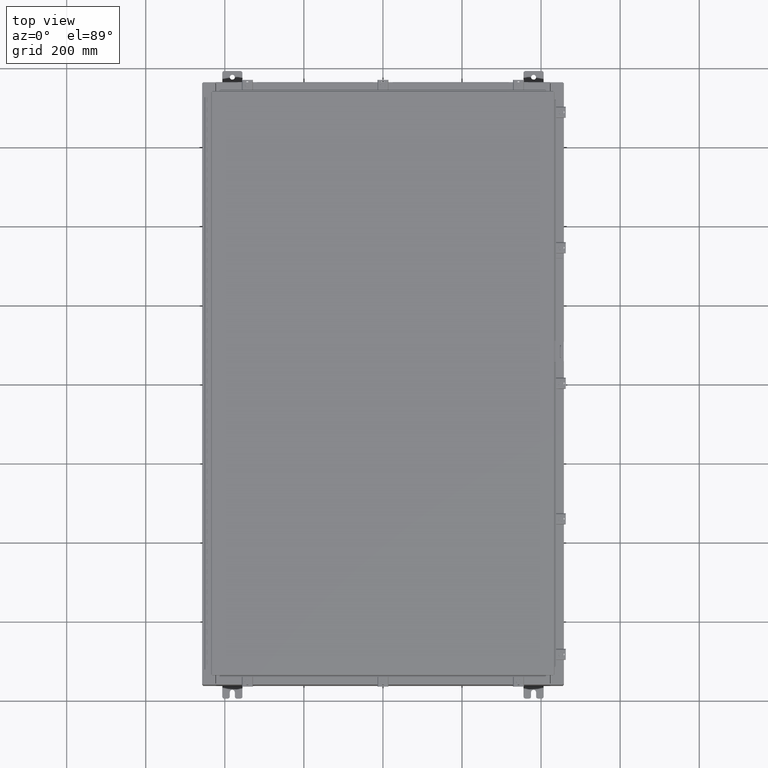
[diagram: clean part render]
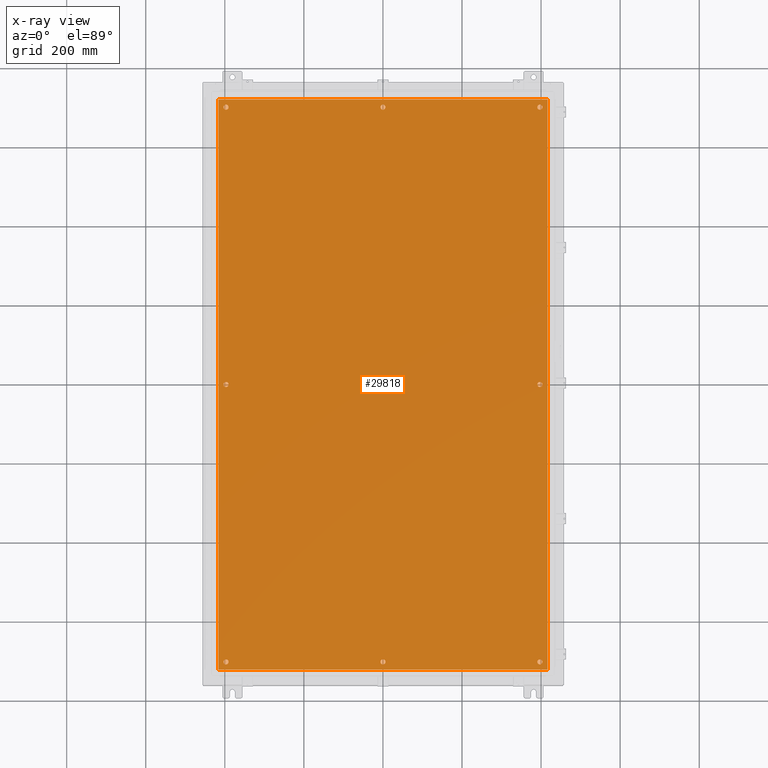
[diagram: x-ray — body ghosted, one internal face saturated and labeled with its STEP entity id]
A machine part, top view, then the same camera in x-ray: the body is ghosted and one INTERNAL B-rep face — a face not visible from any outside direction — is saturated and labeled: STEP entity #29818.
In plain terms, the highlighted planar face has unit normal (0, 0, -1).
Its self-contained STEP definition (entity closure, byte-faithful):
#6 = CIRCLE ( 'NONE', #49368, 0.2499999999999998600 ) ;
#98 = CARTESIAN_POINT ( 'NONE',  ( -0.2500000000000011700, -27.62500000000000000, -0.1039999999999999800 ) ) ;
#328 = VECTOR ( 'NONE', #15884, 39.37007874015748100 ) ;
#608 = DIRECTION ( 'NONE',  ( -1.000000000000000000, 0.0000000000000000000, 0.0000000000000000000 ) ) ;
#704 = EDGE_LOOP ( 'NONE', ( #50180, #9487 ) ) ;
#1457 = CARTESIAN_POINT ( 'NONE',  ( -15.37500000000000900, -27.62500000000000000, -0.1039999999999999800 ) ) ;
#1530 = CARTESIAN_POINT ( 'NONE',  ( 15.62500000000000900, -27.62500000000000000, -0.1039999999999999800 ) ) ;
#1863 = CARTESIAN_POINT ( 'NONE',  ( 15.87500000000000700, 27.62500000000000000, -0.1039999999999999800 ) ) ;
#2033 = VERTEX_POINT ( 'NONE', #59716 ) ;
#2069 = ORIENTED_EDGE ( 'NONE', *, *, #9158, .T. ) ;
#2111 = AXIS2_PLACEMENT_3D ( 'NONE', #28582, #62609, #33419 ) ;
#3066 = CARTESIAN_POINT ( 'NONE',  ( -15.37500000000000900, 27.62500000000000000, -0.1039999999999999800 ) ) ;
#3191 = CARTESIAN_POINT ( 'NONE',  ( 15.87500000000000700, -27.62500000000000000, -0.1039999999999999800 ) ) ;
#3568 = DIRECTION ( 'NONE',  ( -0.0000000000000000000, -0.0000000000000000000, 1.000000000000000000 ) ) ;
#4060 = FACE_BOUND ( 'NONE', #55606, .T. ) ;
#4376 = DIRECTION ( 'NONE',  ( -1.000000000000000000, 0.0000000000000000000, 0.0000000000000000000 ) ) ;
#4400 = ORIENTED_EDGE ( 'NONE', *, *, #47531, .T. ) ;
#4609 = EDGE_CURVE ( 'NONE', #18597, #22534, #7999, .T. ) ;
#4791 = DIRECTION ( 'NONE',  ( -0.0000000000000000000, -0.0000000000000000000, 1.000000000000000000 ) ) ;
#5002 = CARTESIAN_POINT ( 'NONE',  ( 0.0000000000000000000, -27.62500000000000000, -0.1039999999999999800 ) ) ;
#5037 = ORIENTED_EDGE ( 'NONE', *, *, #17517, .F. ) ;
#5175 = AXIS2_PLACEMENT_3D ( 'NONE', #5002, #4791, #4376 ) ;
#5279 = ORIENTED_EDGE ( 'NONE', *, *, #4609, .T. ) ;
#5345 = CARTESIAN_POINT ( 'NONE',  ( 15.37500000000000900, -27.62500000000000000, -0.1039999999999999800 ) ) ;
#5346 = VERTEX_POINT ( 'NONE', #42388 ) ;
#5456 = EDGE_CURVE ( 'NONE', #32627, #5346, #62666, .T. ) ;
#5529 = EDGE_CURVE ( 'NONE', #5346, #32627, #33683, .T. ) ;
#5993 = EDGE_LOOP ( 'NONE', ( #58458, #44023 ) ) ;
#6070 = DIRECTION ( 'NONE',  ( -0.0000000000000000000, -0.0000000000000000000, 1.000000000000000000 ) ) ;
#6173 = VERTEX_POINT ( 'NONE', #44787 ) ;
#6423 = DIRECTION ( 'NONE',  ( -1.000000000000000000, 0.0000000000000000000, 0.0000000000000000000 ) ) ;
#6707 = AXIS2_PLACEMENT_3D ( 'NONE', #35183, #6070, #40086 ) ;
#6718 = CARTESIAN_POINT ( 'NONE',  ( -15.37500000000000500, -8.298848852119578500E-016, -0.1039999999999999800 ) ) ;
#7108 = FACE_BOUND ( 'NONE', #704, .T. ) ;
#7174 = DIRECTION ( 'NONE',  ( -0.0000000000000000000, -0.0000000000000000000, 1.000000000000000000 ) ) ;
#7584 = CIRCLE ( 'NONE', #48626, 0.2499999999999987000 ) ;
#7591 = PLANE ( 'NONE',  #58777 ) ;
#7767 = EDGE_CURVE ( 'NONE', #2033, #60616, #16087, .T. ) ;
#7999 = CIRCLE ( 'NONE', #5175, 0.2500000000000011700 ) ;
#8623 = EDGE_CURVE ( 'NONE', #54750, #53070, #60853, .T. ) ;
#8677 = EDGE_CURVE ( 'NONE', #53070, #54750, #7584, .T. ) ;
#8960 = AXIS2_PLACEMENT_3D ( 'NONE', #34249, #34180, #34102 ) ;
#8995 = VERTEX_POINT ( 'NONE', #13812 ) ;
#9158 = EDGE_CURVE ( 'NONE', #22534, #18597, #60799, .T. ) ;
#9387 = ORIENTED_EDGE ( 'NONE', *, *, #8677, .T. ) ;
#9487 = ORIENTED_EDGE ( 'NONE', *, *, #28085, .T. ) ;
#9924 = VERTEX_POINT ( 'NONE', #35797 ) ;
#10727 = AXIS2_PLACEMENT_3D ( 'NONE', #48686, #19561, #53585 ) ;
#11553 = DIRECTION ( 'NONE',  ( -0.0000000000000000000, -0.0000000000000000000, 1.000000000000000000 ) ) ;
#11955 = VERTEX_POINT ( 'NONE', #23678 ) ;
#12134 = CARTESIAN_POINT ( 'NONE',  ( 0.0000000000000000000, 27.62500000000000000, -0.1039999999999999800 ) ) ;
#12884 = VECTOR ( 'NONE', #44810, 39.37007874015748100 ) ;
#12972 = ORIENTED_EDGE ( 'NONE', *, *, #5529, .T. ) ;
#13812 = CARTESIAN_POINT ( 'NONE',  ( -16.38299999999999900, 28.38299999999998800, -0.1040000000000009100 ) ) ;
#13989 = CIRCLE ( 'NONE', #24743, 0.2499999999999987000 ) ;
#14072 = EDGE_LOOP ( 'NONE', ( #61403, #12972 ) ) ;
#15009 = ORIENTED_EDGE ( 'NONE', *, *, #23733, .T. ) ;
#15200 = CARTESIAN_POINT ( 'NONE',  ( 15.62500000000000900, 27.62500000000000000, -0.1039999999999999800 ) ) ;
#15490 = FACE_OUTER_BOUND ( 'NONE', #21373, .T. ) ;
#15884 = DIRECTION ( 'NONE',  ( 0.0000000000000000000, 1.000000000000000000, 0.0000000000000000000 ) ) ;
#16087 = CIRCLE ( 'NONE', #46965, 0.2500000000000008900 ) ;
#16104 = VERTEX_POINT ( 'NONE', #43700 ) ;
#16993 = FACE_BOUND ( 'NONE', #56608, .T. ) ;
#16995 = DIRECTION ( 'NONE',  ( -1.000000000000000000, 0.0000000000000000000, 0.0000000000000000000 ) ) ;
#17406 = EDGE_CURVE ( 'NONE', #6173, #8995, #25831, .T. ) ;
#17517 = EDGE_CURVE ( 'NONE', #19603, #42479, #19726, .T. ) ;
#18351 = VERTEX_POINT ( 'NONE', #33877 ) ;
#18433 = ORIENTED_EDGE ( 'NONE', *, *, #48611, .T. ) ;
#18597 = VERTEX_POINT ( 'NONE', #50307 ) ;
#19561 = DIRECTION ( 'NONE',  ( -0.0000000000000000000, -0.0000000000000000000, 1.000000000000000000 ) ) ;
#19603 = VERTEX_POINT ( 'NONE', #43976 ) ;
#19726 = LINE ( 'NONE', #50770, #21290 ) ;
#20064 = CIRCLE ( 'NONE', #32607, 0.2499999999999987000 ) ;
#20098 = DIRECTION ( 'NONE',  ( -1.000000000000000000, 0.0000000000000000000, 0.0000000000000000000 ) ) ;
#20433 = ORIENTED_EDGE ( 'NONE', *, *, #8623, .T. ) ;
#21290 = VECTOR ( 'NONE', #21668, 39.37007874015748100 ) ;
#21373 = EDGE_LOOP ( 'NONE', ( #5037, #51629, #25411, #40588 ) ) ;
#21668 = DIRECTION ( 'NONE',  ( 1.000000000000000000, -0.0000000000000000000, -0.0000000000000000000 ) ) ;
#21994 = VERTEX_POINT ( 'NONE', #49088 ) ;
#22534 = VERTEX_POINT ( 'NONE', #98 ) ;
#22558 = AXIS2_PLACEMENT_3D ( 'NONE', #54525, #25370, #59393 ) ;
#23678 = CARTESIAN_POINT ( 'NONE',  ( 0.2499999999999998600, 27.62500000000000000, -0.1039999999999999800 ) ) ;
#23733 = EDGE_CURVE ( 'NONE', #21994, #11955, #61658, .T. ) ;
#24446 = CIRCLE ( 'NONE', #6707, 0.2500000000000008900 ) ;
#24743 = AXIS2_PLACEMENT_3D ( 'NONE', #15200, #49225, #20098 ) ;
#25370 = DIRECTION ( 'NONE',  ( -0.0000000000000000000, -0.0000000000000000000, 1.000000000000000000 ) ) ;
#25411 = ORIENTED_EDGE ( 'NONE', *, *, #17406, .F. ) ;
#25831 = LINE ( 'NONE', #54638, #12884 ) ;
#26851 = VECTOR ( 'NONE', #39812, 39.37007874015748100 ) ;
#27244 = DIRECTION ( 'NONE',  ( -1.000000000000000000, 0.0000000000000000000, 0.0000000000000000000 ) ) ;
#27349 = CARTESIAN_POINT ( 'NONE',  ( 15.62500000000000500, 2.997136362123522700E-015, -0.1039999999999999800 ) ) ;
#27382 = DIRECTION ( 'NONE',  ( -0.0000000000000000000, -0.0000000000000000000, 1.000000000000000000 ) ) ;
#27505 = CARTESIAN_POINT ( 'NONE',  ( -15.62500000000000500, -8.298848852119578500E-016, -0.1039999999999999800 ) ) ;
#28062 = AXIS2_PLACEMENT_3D ( 'NONE', #58049, #28860, #62892 ) ;
#28085 = EDGE_CURVE ( 'NONE', #60616, #2033, #36994, .T. ) ;
#28405 = FACE_BOUND ( 'NONE', #31005, .T. ) ;
#28582 = CARTESIAN_POINT ( 'NONE',  ( -15.62500000000000900, -27.62500000000000000, -0.1039999999999999800 ) ) ;
#28860 = DIRECTION ( 'NONE',  ( -0.0000000000000000000, -0.0000000000000000000, 1.000000000000000000 ) ) ;
#29601 = EDGE_LOOP ( 'NONE', ( #20433, #9387 ) ) ;
#29733 = DIRECTION ( 'NONE',  ( -0.0000000000000000000, -0.0000000000000000000, 1.000000000000000000 ) ) ;
#29748 = EDGE_CURVE ( 'NONE', #18351, #43309, #20064, .T. ) ;
#29818 = ADVANCED_FACE ( 'NONE', ( #55848, #16993, #7108, #29913, #4060, #54307, #41333, #28405, #15490 ), #7591, .T. ) ;
#29913 = FACE_BOUND ( 'NONE', #14072, .T. ) ;
#31005 = EDGE_LOOP ( 'NONE', ( #4400, #18433 ) ) ;
#31274 = CIRCLE ( 'NONE', #44978, 0.2499999999999987000 ) ;
#32198 = DIRECTION ( 'NONE',  ( -1.000000000000000000, 0.0000000000000000000, 0.0000000000000000000 ) ) ;
#32607 = AXIS2_PLACEMENT_3D ( 'NONE', #36291, #7174, #41180 ) ;
#32627 = VERTEX_POINT ( 'NONE', #6718 ) ;
#32648 = CARTESIAN_POINT ( 'NONE',  ( 15.62500000000000900, 27.62500000000000000, -0.1039999999999999800 ) ) ;
#33419 = DIRECTION ( 'NONE',  ( -1.000000000000000000, 0.0000000000000000000, 0.0000000000000000000 ) ) ;
#33683 = CIRCLE ( 'NONE', #57886, 0.2500000000000008900 ) ;
#33877 = CARTESIAN_POINT ( 'NONE',  ( -15.87500000000000700, -27.62500000000000000, -0.1039999999999999800 ) ) ;
#34102 = DIRECTION ( 'NONE',  ( -1.000000000000000000, 0.0000000000000000000, 0.0000000000000000000 ) ) ;
#34180 = DIRECTION ( 'NONE',  ( -0.0000000000000000000, -0.0000000000000000000, 1.000000000000000000 ) ) ;
#34249 = CARTESIAN_POINT ( 'NONE',  ( -15.62500000000000500, -8.298848852119578500E-016, -0.1039999999999999800 ) ) ;
#35179 = CIRCLE ( 'NONE', #42076, 0.2500000000000008900 ) ;
#35183 = CARTESIAN_POINT ( 'NONE',  ( -15.62500000000001100, 27.62500000000000000, -0.1039999999999999800 ) ) ;
#35186 = CARTESIAN_POINT ( 'NONE',  ( 16.38299999999999900, -28.38300000000000600, -0.1040000000000009100 ) ) ;
#35328 = CARTESIAN_POINT ( 'NONE',  ( 16.38299999999999900, -28.38300000000000600, -0.1040000000000009100 ) ) ;
#35524 = DIRECTION ( 'NONE',  ( -0.0000000000000000000, -0.0000000000000000000, 1.000000000000000000 ) ) ;
#35797 = CARTESIAN_POINT ( 'NONE',  ( -15.87500000000001100, 27.62500000000000000, -0.1039999999999999800 ) ) ;
#35887 = EDGE_LOOP ( 'NONE', ( #5279, #2069 ) ) ;
#36291 = CARTESIAN_POINT ( 'NONE',  ( -15.62500000000000900, -27.62500000000000000, -0.1039999999999999800 ) ) ;
#36994 = CIRCLE ( 'NONE', #10727, 0.2500000000000008900 ) ;
#37579 = DIRECTION ( 'NONE',  ( -1.000000000000000000, 0.0000000000000000000, 0.0000000000000000000 ) ) ;
#37750 = EDGE_CURVE ( 'NONE', #11955, #21994, #6, .T. ) ;
#38610 = EDGE_CURVE ( 'NONE', #43309, #18351, #51636, .T. ) ;
#39106 = LINE ( 'NONE', #35186, #328 ) ;
#39651 = AXIS2_PLACEMENT_3D ( 'NONE', #58915, #29733, #608 ) ;
#39812 = DIRECTION ( 'NONE',  ( 0.0000000000000000000, -1.000000000000000000, 0.0000000000000000000 ) ) ;
#40086 = DIRECTION ( 'NONE',  ( -1.000000000000000000, 0.0000000000000000000, 0.0000000000000000000 ) ) ;
#40588 = ORIENTED_EDGE ( 'NONE', *, *, #41853, .F. ) ;
#40678 = CARTESIAN_POINT ( 'NONE',  ( -15.62500000000001100, 27.62500000000000000, -0.1039999999999999800 ) ) ;
#41180 = DIRECTION ( 'NONE',  ( -1.000000000000000000, 0.0000000000000000000, 0.0000000000000000000 ) ) ;
#41296 = LINE ( 'NONE', #54327, #26851 ) ;
#41333 = FACE_BOUND ( 'NONE', #5993, .T. ) ;
#41594 = CARTESIAN_POINT ( 'NONE',  ( 0.0000000000000000000, 0.0000000000000000000, -0.1039999999999999800 ) ) ;
#41675 = CARTESIAN_POINT ( 'NONE',  ( 15.37500000000000500, 3.027752532102206500E-015, -0.1039999999999999800 ) ) ;
#41853 = EDGE_CURVE ( 'NONE', #42479, #6173, #39106, .T. ) ;
#42065 = VERTEX_POINT ( 'NONE', #3066 ) ;
#42076 = AXIS2_PLACEMENT_3D ( 'NONE', #40678, #11553, #45586 ) ;
#42388 = CARTESIAN_POINT ( 'NONE',  ( -15.87500000000000700, -7.992687152332741600E-016, -0.1039999999999999800 ) ) ;
#42479 = VERTEX_POINT ( 'NONE', #35328 ) ;
#43309 = VERTEX_POINT ( 'NONE', #1457 ) ;
#43700 = CARTESIAN_POINT ( 'NONE',  ( 15.37500000000000900, 27.62500000000000000, -0.1039999999999999800 ) ) ;
#43976 = CARTESIAN_POINT ( 'NONE',  ( -16.38299999999999900, -28.38300000000000600, -0.1040000000000009400 ) ) ;
#44023 = ORIENTED_EDGE ( 'NONE', *, *, #56415, .T. ) ;
#44787 = CARTESIAN_POINT ( 'NONE',  ( 16.38299999999999900, 28.38299999999998800, -0.1040000000000009100 ) ) ;
#44810 = DIRECTION ( 'NONE',  ( -1.000000000000000000, -0.0000000000000000000, -0.0000000000000000000 ) ) ;
#44978 = AXIS2_PLACEMENT_3D ( 'NONE', #32648, #3568, #37579 ) ;
#45586 = DIRECTION ( 'NONE',  ( -1.000000000000000000, 0.0000000000000000000, 0.0000000000000000000 ) ) ;
#46143 = DIRECTION ( 'NONE',  ( -0.0000000000000000000, -0.0000000000000000000, 1.000000000000000000 ) ) ;
#46526 = DIRECTION ( 'NONE',  ( -1.000000000000000000, 0.0000000000000000000, -0.0000000000000000000 ) ) ;
#46965 = AXIS2_PLACEMENT_3D ( 'NONE', #27349, #61391, #32198 ) ;
#47423 = EDGE_CURVE ( 'NONE', #8995, #19603, #41296, .T. ) ;
#47531 = EDGE_CURVE ( 'NONE', #42065, #9924, #35179, .T. ) ;
#48296 = EDGE_CURVE ( 'NONE', #53688, #16104, #31274, .T. ) ;
#48611 = EDGE_CURVE ( 'NONE', #9924, #42065, #24446, .T. ) ;
#48626 = AXIS2_PLACEMENT_3D ( 'NONE', #1530, #35524, #6423 ) ;
#48686 = CARTESIAN_POINT ( 'NONE',  ( 15.62500000000000500, 2.997136362123522700E-015, -0.1039999999999999800 ) ) ;
#49088 = CARTESIAN_POINT ( 'NONE',  ( -0.2499999999999998600, 27.62500000000000000, -0.1039999999999999800 ) ) ;
#49225 = DIRECTION ( 'NONE',  ( -0.0000000000000000000, -0.0000000000000000000, 1.000000000000000000 ) ) ;
#49368 = AXIS2_PLACEMENT_3D ( 'NONE', #12134, #46143, #16995 ) ;
#50180 = ORIENTED_EDGE ( 'NONE', *, *, #7767, .T. ) ;
#50307 = CARTESIAN_POINT ( 'NONE',  ( 0.2500000000000011700, -27.62500000000000000, -0.1039999999999999800 ) ) ;
#50770 = CARTESIAN_POINT ( 'NONE',  ( -16.50000000000000000, -28.38300000000000600, -0.1040000000000009400 ) ) ;
#51629 = ORIENTED_EDGE ( 'NONE', *, *, #47423, .F. ) ;
#51636 = CIRCLE ( 'NONE', #2111, 0.2499999999999987000 ) ;
#52714 = ORIENTED_EDGE ( 'NONE', *, *, #37750, .T. ) ;
#53070 = VERTEX_POINT ( 'NONE', #5345 ) ;
#53585 = DIRECTION ( 'NONE',  ( -1.000000000000000000, 0.0000000000000000000, 0.0000000000000000000 ) ) ;
#53688 = VERTEX_POINT ( 'NONE', #1863 ) ;
#54307 = FACE_BOUND ( 'NONE', #29601, .T. ) ;
#54327 = CARTESIAN_POINT ( 'NONE',  ( -16.38299999999999900, 28.38299999999998800, -0.1040000000000009100 ) ) ;
#54525 = CARTESIAN_POINT ( 'NONE',  ( 15.62500000000000900, -27.62500000000000000, -0.1039999999999999800 ) ) ;
#54638 = CARTESIAN_POINT ( 'NONE',  ( 16.50000000000000000, 28.38299999999999600, -0.1040000000000009400 ) ) ;
#54750 = VERTEX_POINT ( 'NONE', #3191 ) ;
#55606 = EDGE_LOOP ( 'NONE', ( #61364, #61108 ) ) ;
#55848 = FACE_BOUND ( 'NONE', #35887, .T. ) ;
#56415 = EDGE_CURVE ( 'NONE', #16104, #53688, #13989, .T. ) ;
#56608 = EDGE_LOOP ( 'NONE', ( #52714, #15009 ) ) ;
#57886 = AXIS2_PLACEMENT_3D ( 'NONE', #27505, #27382, #27244 ) ;
#58049 = CARTESIAN_POINT ( 'NONE',  ( 0.0000000000000000000, 27.62500000000000000, -0.1039999999999999800 ) ) ;
#58458 = ORIENTED_EDGE ( 'NONE', *, *, #48296, .T. ) ;
#58777 = AXIS2_PLACEMENT_3D ( 'NONE', #41594, #60973, #46526 ) ;
#58915 = CARTESIAN_POINT ( 'NONE',  ( 0.0000000000000000000, -27.62500000000000000, -0.1039999999999999800 ) ) ;
#59393 = DIRECTION ( 'NONE',  ( -1.000000000000000000, 0.0000000000000000000, 0.0000000000000000000 ) ) ;
#59716 = CARTESIAN_POINT ( 'NONE',  ( 15.87500000000000700, 2.997136362123522700E-015, -0.1039999999999999800 ) ) ;
#60616 = VERTEX_POINT ( 'NONE', #41675 ) ;
#60799 = CIRCLE ( 'NONE', #39651, 0.2500000000000011700 ) ;
#60853 = CIRCLE ( 'NONE', #22558, 0.2499999999999987000 ) ;
#60973 = DIRECTION ( 'NONE',  ( 0.0000000000000000000, 0.0000000000000000000, -1.000000000000000000 ) ) ;
#61108 = ORIENTED_EDGE ( 'NONE', *, *, #29748, .T. ) ;
#61364 = ORIENTED_EDGE ( 'NONE', *, *, #38610, .T. ) ;
#61391 = DIRECTION ( 'NONE',  ( -0.0000000000000000000, -0.0000000000000000000, 1.000000000000000000 ) ) ;
#61403 = ORIENTED_EDGE ( 'NONE', *, *, #5456, .T. ) ;
#61658 = CIRCLE ( 'NONE', #28062, 0.2499999999999998600 ) ;
#62609 = DIRECTION ( 'NONE',  ( -0.0000000000000000000, -0.0000000000000000000, 1.000000000000000000 ) ) ;
#62666 = CIRCLE ( 'NONE', #8960, 0.2500000000000008900 ) ;
#62892 = DIRECTION ( 'NONE',  ( -1.000000000000000000, 0.0000000000000000000, 0.0000000000000000000 ) ) ;